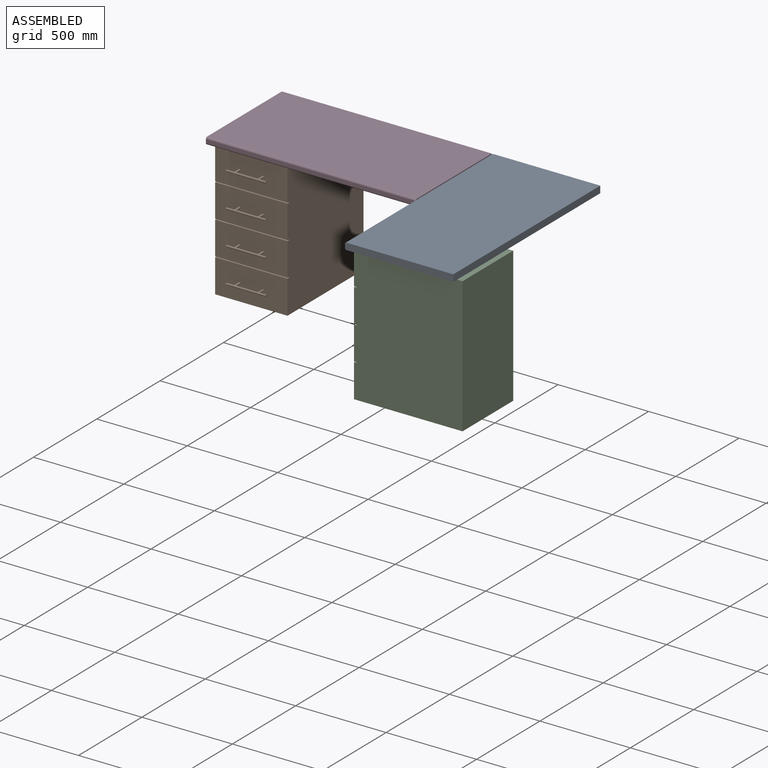
[diagram: assembled view]
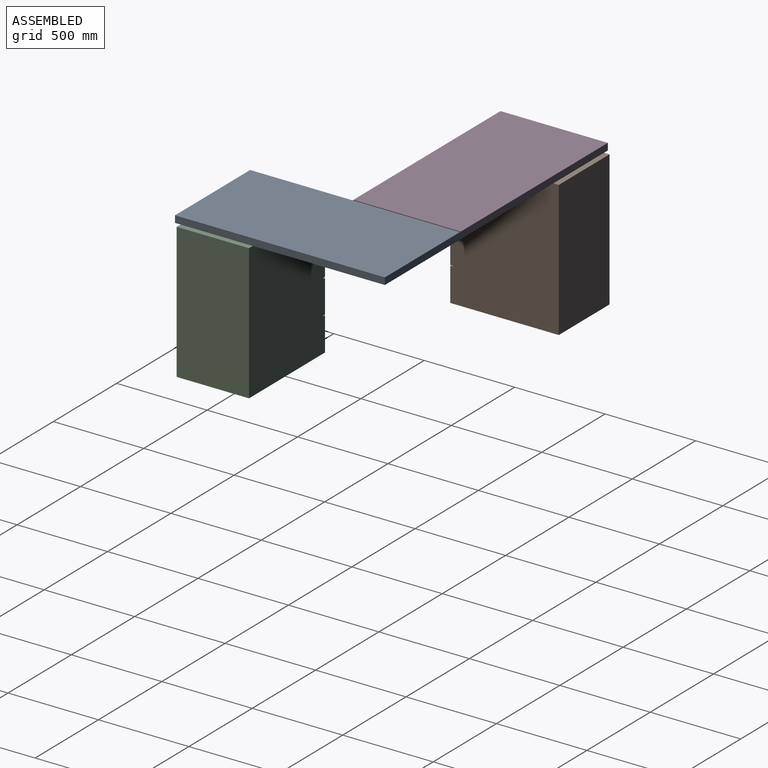
[diagram: assembled view, second angle]
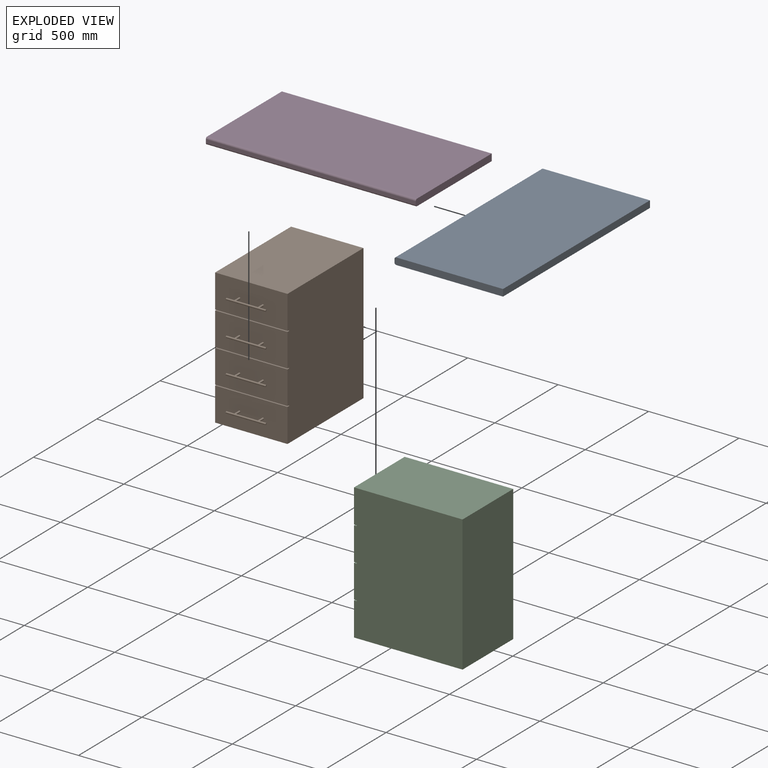
[diagram: exploded view]
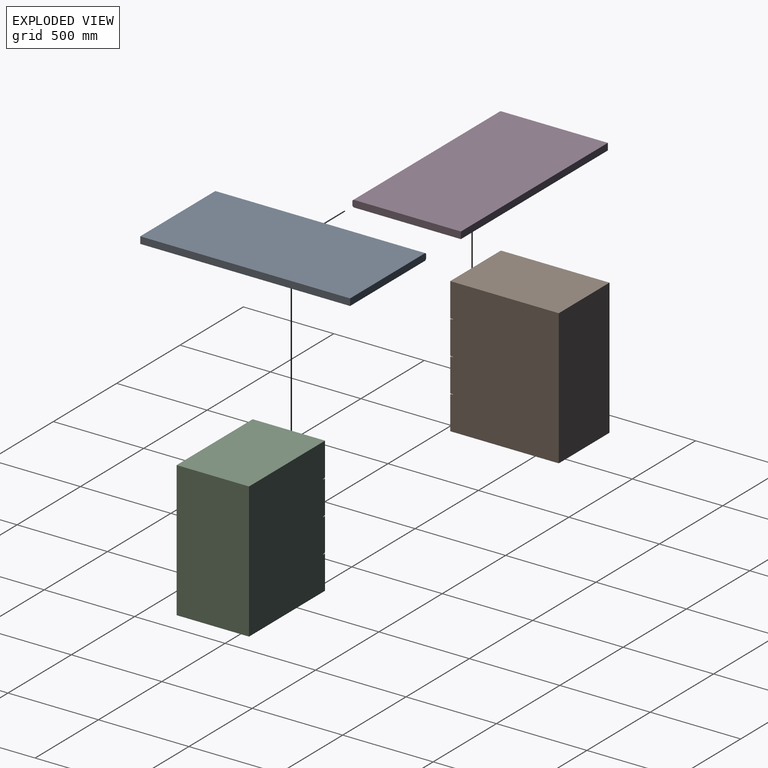
[diagram: exploded view, second angle]
ASSEMBLY  parts=4 mates=3
PART A: 8 faces, bbox 1160x600x38 mm
  f0: plane 600x38mm, normal (1,0,0), area 22757.1mm2, adj f1,f3,f4,f5,f6,f7
  f1: plane 1160x38mm, normal (0,1,0), area 44080mm2, adj f0,f2,f4,f5
  f2: plane 600x38mm, normal (-1,0,0), area 22757.1mm2, adj f1,f3,f4,f5,f6,f7
  f3: plane 1160x18mm, normal (0,-1,0), area 20880mm2, adj f0,f2,f6,f7
  f4: plane 1160x590mm, normal (0,0,1), area 684400mm2, adj f0,f1,f2,f7
  f5: plane 1160x590mm, normal (0,0,-1), area 684400mm2, adj f0,f1,f2,f6
  f6: cylinder r=10mm len=1160mm, axis (1,0,0), area 18221.2mm2, adj f0,f2,f3,f5
  f7: cylinder r=10mm len=1160mm, axis (-1,0,0), area 18221.2mm2, adj f0,f2,f3,f4
PART B: 38 faces, bbox 400x645x750 mm
  f0: plane 400x182.5mm, normal (0,-1,0), area 72842.9mm2, adj f3,f5,f12,f16,f20,f21
  f1: plane 400x182.5mm, normal (0,-1,0), area 72842.9mm2, adj f3,f5,f9,f13,f22,f23
  f2: plane 400x185mm, normal (0,-1,0), area 73842.9mm2, adj f3,f5,f8,f10,f24,f25
  f3: plane 750x600mm, normal (1,0,0), area 449775mm2, adj f0,f1,f2,f4,f6,f7,f8,f9
  f4: plane 750x400mm, normal (0,1,0), area 300000mm2, adj f3,f5,f7,f8
  f5: plane 750x600mm, normal (-1,0,0), area 449775mm2, adj f0,f1,f2,f4,f6,f7,f8,f9
  f6: plane 400x185mm, normal (0,-1,0), area 73842.9mm2, adj f3,f5,f7,f15,f18,f19
  f7: plane 600x400mm, normal (0,0,1), area 240000mm2, adj f3,f4,f5,f6
  f8: plane 600x400mm, normal (0,0,-1), area 240000mm2, adj f2,f3,f4,f5
  f9: plane 400x15mm, normal (0,0,-1), area 6000mm2, adj f1,f3,f5,f11
  f10: plane 400x15mm, normal (0,0,1), area 6000mm2, adj f2,f3,f5,f11
  f11: plane 400x5mm, normal (0,-1,0), area 2000mm2, adj f3,f5,f9,f10
  f12: plane 400x15mm, normal (0,0,-1), area 6000mm2, adj f0,f3,f5,f14
  f13: plane 400x15mm, normal (0,0,1), area 6000mm2, adj f1,f3,f5,f14
  f14: plane 400x5mm, normal (0,-1,0), area 2000mm2, adj f3,f5,f12,f13
  f15: plane 400x15mm, normal (0,0,-1), area 6000mm2, adj f3,f5,f6,f17
  f16: plane 400x15mm, normal (0,0,1), area 6000mm2, adj f0,f3,f5,f17
  f17: plane 400x5mm, normal (0,-1,0), area 2000mm2, adj f3,f5,f15,f16
  f18: cylinder r=5mm len=40mm, axis (0,1,0), area 1156.6mm2, adj f6,f26
  f19: cylinder r=5mm len=40mm, axis (0,1,0), area 1156.6mm2, adj f6,f26
  f20: cylinder r=5mm len=40mm, axis (0,1,0), area 1156.6mm2, adj f0,f29
  f21: cylinder r=5mm len=40mm, axis (0,1,0), area 1156.6mm2, adj f0,f29
  f22: cylinder r=5mm len=40mm, axis (0,1,0), area 1156.6mm2, adj f1,f32
  f23: cylinder r=5mm len=40mm, axis (0,1,0), area 1156.6mm2, adj f1,f32
  f24: cylinder r=5mm len=40mm, axis (0,1,0), area 1156.6mm2, adj f2,f35
  f25: cylinder r=5mm len=40mm, axis (0,1,0), area 1156.6mm2, adj f2,f35
  f26: cylinder r=5mm len=220mm, axis (-1,0,0), area 6711.5mm2, adj f18,f19,f27,f28
  f27: plane 10x10mm, normal (1,0,0), area 78.5mm2, adj f26
  f28: plane 10x10mm, normal (-1,0,0), area 78.5mm2, adj f26
  f29: cylinder r=5mm len=220mm, axis (-1,0,0), area 6711.5mm2, adj f20,f21,f30,f31
  f30: plane 10x10mm, normal (1,0,0), area 78.5mm2, adj f29
  f31: plane 10x10mm, normal (-1,0,0), area 78.5mm2, adj f29
  f32: cylinder r=5mm len=220mm, axis (-1,0,0), area 6711.5mm2, adj f22,f23,f33,f34
  f33: plane 10x10mm, normal (1,0,0), area 78.5mm2, adj f32
  f34: plane 10x10mm, normal (-1,0,0), area 78.5mm2, adj f32
  f35: cylinder r=5mm len=220mm, axis (-1,0,0), area 6711.5mm2, adj f24,f25,f36,f37
  f36: plane 10x10mm, normal (1,0,0), area 78.5mm2, adj f35
  f37: plane 10x10mm, normal (-1,0,0), area 78.5mm2, adj f35
PART C: same geometry as B
PART D: same geometry as A
PLACE A rot(axis=(0,0,-1),90deg) t=(1109.5,-259.92,-187.63)mm fixed
PLACE B t=(-120.5,50.08,-937.63)mm
PLACE C rot(axis=(0,0,-1),90deg) t=(1139.5,-609.92,-937.63)mm
PLACE D t=(229.5,20.08,-187.63)mm
MATE fastened B.f7 <-> D.f5  axis (0,0,1) through (-320.5,350.08,-187.63)mm
MATE fastened A.f3 <-> D.f0  axis (-1,0,0) through (809.5,320.08,-168.63)mm
MATE fastened C.f7 <-> A.f5  axis (0,0,1) through (1439.5,-809.92,-187.63)mm
